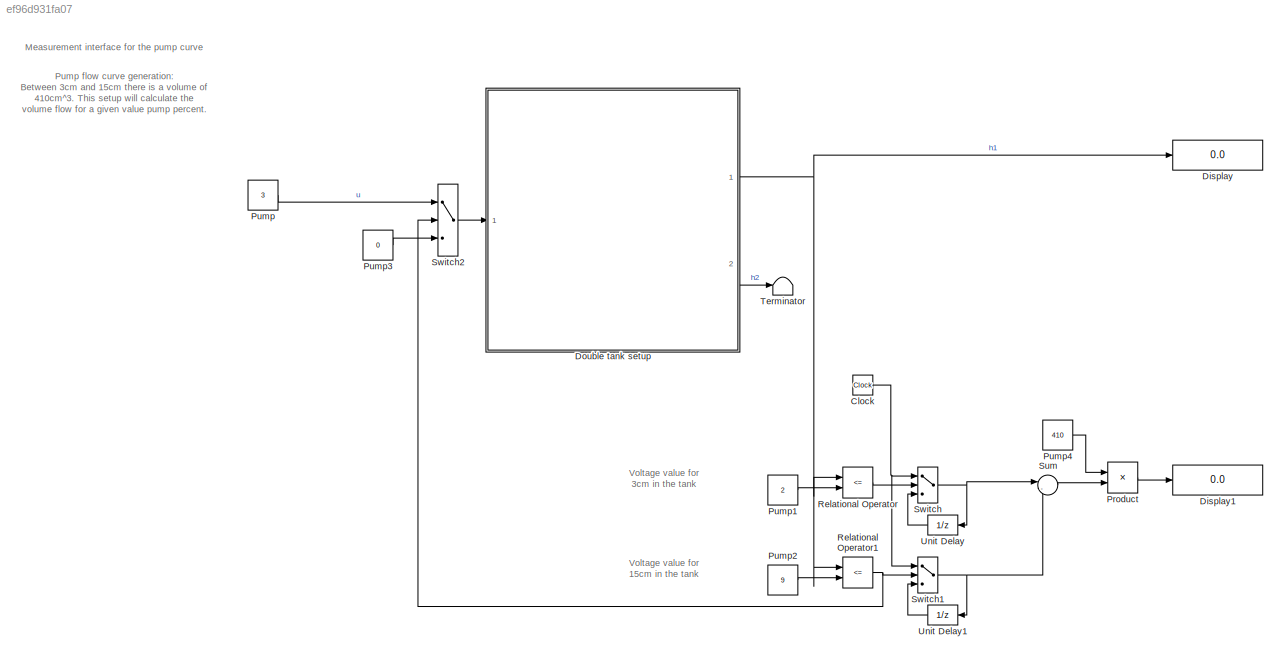
MODEL slx_ef96d931fa07
KIND model
CONFIG AbsTol = auto
CONFIG EnableMultiTasking = on
CONFIG FixedStep = auto
CONFIG MaxStep = auto
CONFIG MinStep = auto
CONFIG RelTol = 1e-3
CONFIG SampleTimeConstraint = Unconstrained
CONFIG Solver = ode5
CONFIG SolverName = ode5
CONFIG StartTime = 0.0
CONFIG StopTime = inf
BLOCK [Clock] Clock
BLOCK [Display] Display
  Decimation = 1
  Ports = [1]
BLOCK [Display] Display1
  Decimation = 1
  Ports = [1]
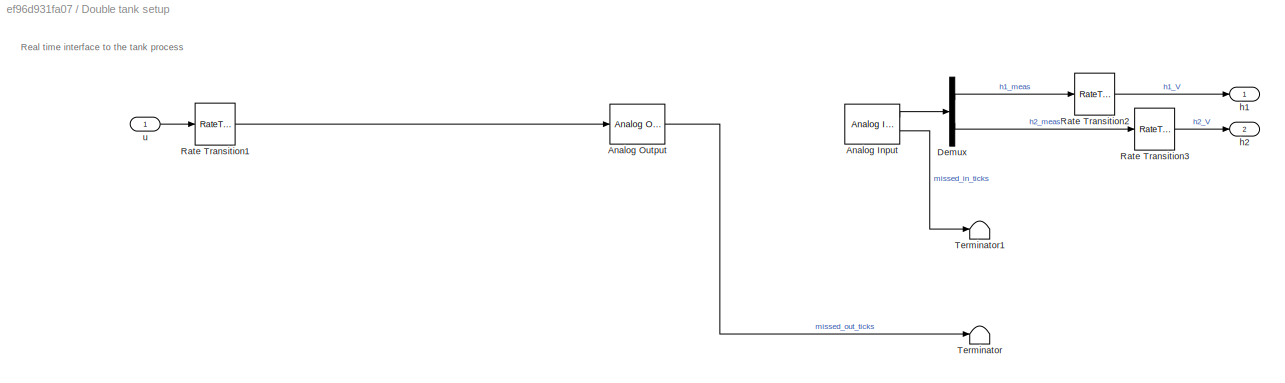
BLOCK [SubSystem] Double tank setup
  AncestorBlock = R0002E_lib/Double tank setup
  Ports = [1, 2]
  RequestExecContextInheritance = off
  StopFcn = chn =get_param(gcb,'u_ch');                          \ns = daq.createSession('ni');                         \nchannel = ['ao',chn];                                \ns.addAnalogOutputChannel('Dev1', channel, 'Voltage');\nx = zeros(5,1);                                      \ns.queueOutputData(x);                                \nlh = s.addlistener('DataRequired', ...               \n@(src,event) src.queue...<+472ch>
  Variant = off
BLOCK [Reference] Double tank setup/Analog Input  REF=rtwinlib/Analog Input
  AttributesFormatString = National Instruments\nPCI-6024E [auto]
  Ports = [0, 2]
  SourceBlock = rtwinlib/Analog Input
  SourceType = Simulink Desktop Real-Time Analog Input
BLOCK [Reference] Double tank setup/Analog Output  REF=rtwinlib/Analog Output
  AttributesFormatString = National Instruments\nPCI-6024E [auto]
  Ports = [1, 1]
  SourceBlock = rtwinlib/Analog Output
  SourceType = Simulink Desktop Real-Time Analog Output
BLOCK [Demux] Double tank setup/Demux
  DisplayOption = bar
  Outputs = 2
  Ports = [1, 2]
BLOCK [RateTransition] Double tank setup/Rate Transition1
  OutPortSampleTime = ts
BLOCK [RateTransition] Double tank setup/Rate Transition2
BLOCK [RateTransition] Double tank setup/Rate Transition3
BLOCK [Terminator] Double tank setup/Terminator
BLOCK [Terminator] Double tank setup/Terminator1
BLOCK [Outport] Double tank setup/h1
  IconDisplay = Port number
BLOCK [Outport] Double tank setup/h2
  IconDisplay = Port number
  Port = 2
BLOCK [Inport] Double tank setup/u
  IconDisplay = Port number
BLOCK [Product] Product
  InputSameDT = off
  Inputs = */
  OutDataTypeStr = Inherit: Inherit via internal rule
  Ports = [2, 1]
  RndMeth = Floor
  SaturateOnIntegerOverflow = off
BLOCK [Constant] Pump
  Value = 3
BLOCK [Constant] Pump1
  Value = 2
BLOCK [Constant] Pump2
  Value = 9
BLOCK [Constant] Pump3
  Value = 0
BLOCK [Constant] Pump4
  Value = 410
BLOCK [RelationalOperator] Relational Operator
  InputSameDT = off
  Operator = <=
  OutDataTypeStr = boolean
  Ports = [2, 1]
BLOCK [RelationalOperator] Relational Operator1
  InputSameDT = off
  Operator = <=
  OutDataTypeStr = boolean
  Ports = [2, 1]
BLOCK [Sum] Sum
  IconShape = round
  InputSameDT = off
  Inputs = |-+
  OutDataTypeStr = Inherit: Inherit via internal rule
  Ports = [2, 1]
  SaturateOnIntegerOverflow = off
BLOCK [Switch] Switch
  Criteria = u2 ~= 0
  InputSameDT = off
  SaturateOnIntegerOverflow = off
BLOCK [Switch] Switch1
  Criteria = u2 ~= 0
  InputSameDT = off
  SaturateOnIntegerOverflow = off
BLOCK [Switch] Switch2
  Criteria = u2 ~= 0
  InputSameDT = off
  SaturateOnIntegerOverflow = off
BLOCK [Terminator] Terminator
BLOCK [UnitDelay] Unit Delay
  InputProcessing = Elements as channels (sample based)
  SampleTime = -1
BLOCK [UnitDelay] Unit Delay1
  InputProcessing = Elements as channels (sample based)
  SampleTime = -1
ANNOTATION (root): Pump flow curve generation: Between 3cm and 15cm there is a volume of 410cm^3. This setup will calculate the volume flow for a given value pump percent.
ANNOTATION (root): Measurement interface for the pump curve
ANNOTATION (root): Voltage value for 15cm in the tank
ANNOTATION (root): Voltage value for 3cm in the tank
ANNOTATION Double tank setup: Real time interface to the tank process
NET Clock:1 -> Switch1:1, Switch:1
NET Double tank setup:1 -> Display:1, Relational Operator1:1, Relational Operator:1
LINE Double tank setup:2 -> Terminator:1
LINE Product:1 -> Display1:1
LINE Pump1:1 -> Relational Operator:2
LINE Pump2:1 -> Relational Operator1:2
LINE Pump3:1 -> Switch2:3
LINE Pump4:1 -> Product:1
LINE Pump:1 -> Switch2:1
NET Relational Operator1:1 -> Switch1:2, Switch2:2
LINE Relational Operator:1 -> Switch:2
LINE Sum:1 -> Product:2
NET Switch1:1 -> Sum:2, Unit Delay1:1
LINE Switch2:1 -> Double tank setup:1
NET Switch:1 -> Sum:1, Unit Delay:1
LINE Unit Delay1:1 -> Switch1:3
LINE Unit Delay:1 -> Switch:3
note: NET lines group one-source signal fan-out (src -> all destinations, sorted); 1:1 wires keep LINE
